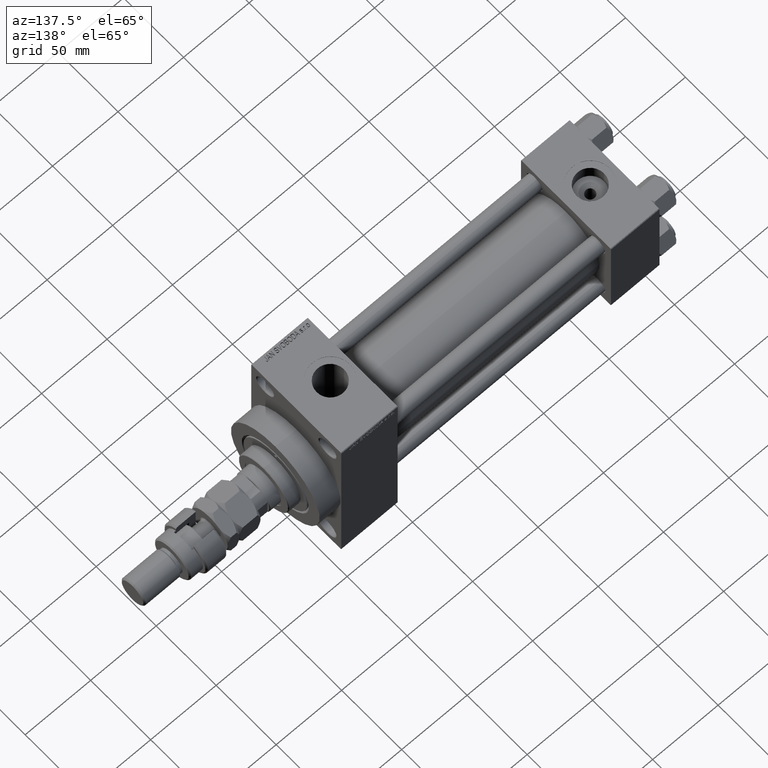
[diagram: clean part render]
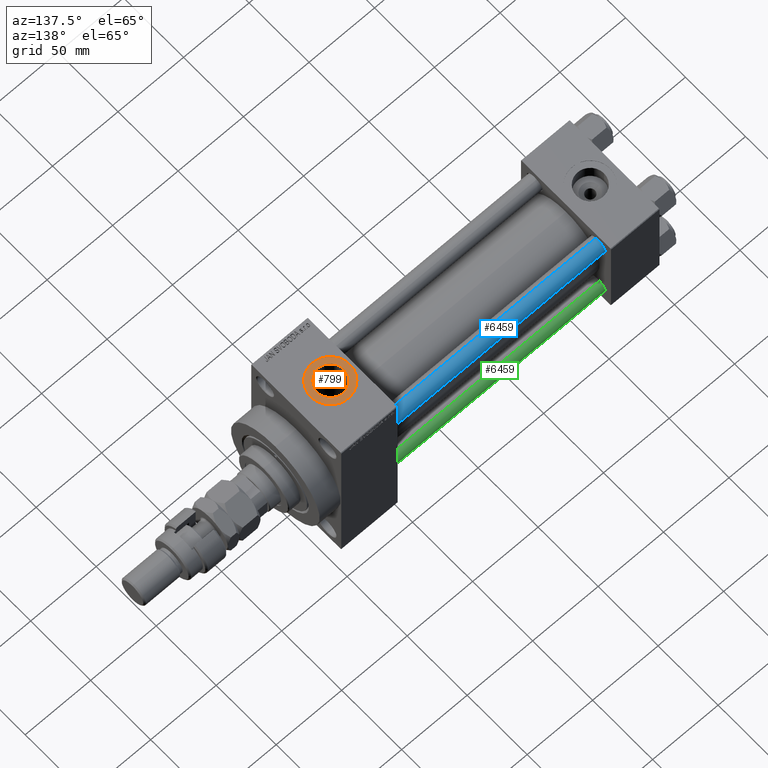
[diagram: same view with three faces highlighted in distinct colors, each labeled with its STEP entity id]
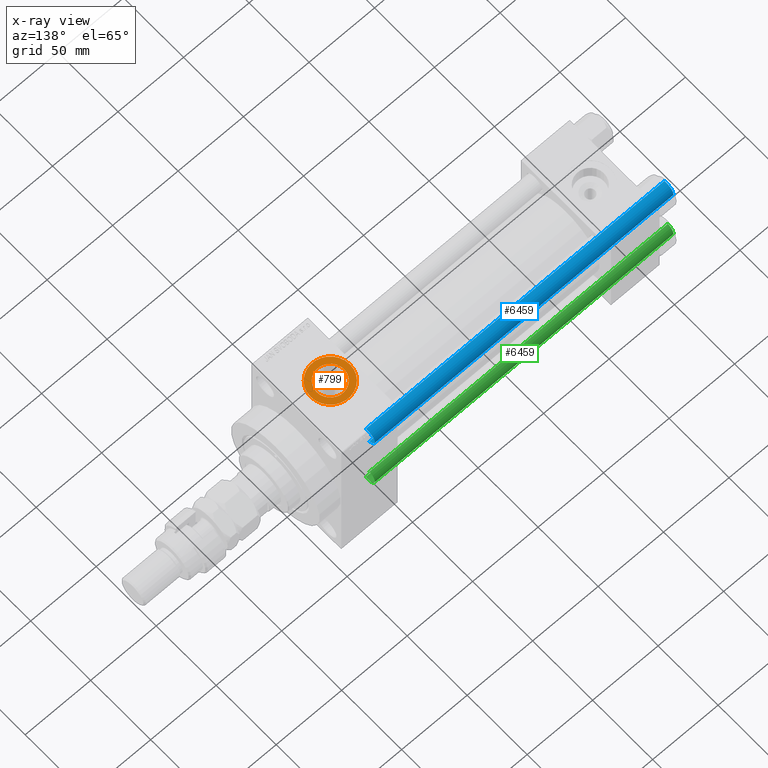
[diagram: x-ray of the same camera — body ghosted, the three highlighted faces saturated]
A machine part, auxiliary view with three faces highlighted in distinct colors.
The next image is the same camera in x-ray (body ghosted, the three faces saturated) — at least one of them is partly hidden behind the body in this view.
Their STEP definitions:

[orange] entity #799 — the highlighted planar face has unit normal (0, 0, 1).
#116 = VERTEX_POINT ( 'NONE', #38392 ) ;
#137 = ORIENTED_EDGE ( 'NONE', *, *, #30864, .T. ) ;
#799 = ADVANCED_FACE ( 'NONE', ( #10334, #41339 ), #49217, .T. ) ;
#821 = DIRECTION ( 'NONE',  ( 1.000000000000000000, 0.000000000000000000, -0.000000000000000000 ) ) ;
#2023 = CIRCLE ( 'NONE', #25571, 10.47999999999998977 ) ;
#2077 = CIRCLE ( 'NONE', #36967, 10.47999999999998977 ) ;
#4040 = DIRECTION ( 'NONE',  ( -0.000000000000000000, -0.000000000000000000, -1.000000000000000000 ) ) ;
#4634 = CIRCLE ( 'NONE', #38731, 15.00000000000001421 ) ;
#5120 = DIRECTION ( 'NONE',  ( -0.000000000000000000, -0.000000000000000000, -1.000000000000000000 ) ) ;
#7585 = DIRECTION ( 'NONE',  ( 0.000000000000000000, 0.000000000000000000, 1.000000000000000000 ) ) ;
#7841 = CARTESIAN_POINT ( 'NONE',  ( 217.0000000000000284, -1.184237892933500047E-14, 63.79999999999996874 ) ) ;
#7916 = AXIS2_PLACEMENT_3D ( 'NONE', #21141, #28758, #821 ) ;
#10019 = ORIENTED_EDGE ( 'NONE', *, *, #24619, .T. ) ;
#10334 = FACE_BOUND ( 'NONE', #41917, .T. ) ;
#13285 = VERTEX_POINT ( 'NONE', #30439 ) ;
#15285 = AXIS2_PLACEMENT_3D ( 'NONE', #49276, #7585, #26146 ) ;
#20866 = CARTESIAN_POINT ( 'NONE',  ( 217.0000000000000284, -1.184237892933500047E-14, 63.79999999999996874 ) ) ;
#21141 = CARTESIAN_POINT ( 'NONE',  ( 217.0000000000000284, -1.184237892933500047E-14, 63.79999999999996874 ) ) ;
#23406 = ORIENTED_EDGE ( 'NONE', *, *, #35618, .T. ) ;
#23702 = VERTEX_POINT ( 'NONE', #32962 ) ;
#24619 = EDGE_CURVE ( 'NONE', #23702, #116, #2077, .T. ) ;
#25571 = AXIS2_PLACEMENT_3D ( 'NONE', #20866, #5120, #44497 ) ;
#26146 = DIRECTION ( 'NONE',  ( 1.000000000000000000, 0.000000000000000000, 0.000000000000000000 ) ) ;
#26551 = DIRECTION ( 'NONE',  ( 1.000000000000000000, 0.000000000000000000, 0.000000000000000000 ) ) ;
#28758 = DIRECTION ( 'NONE',  ( 0.000000000000000000, 0.000000000000000000, 1.000000000000000000 ) ) ;
#30439 = CARTESIAN_POINT ( 'NONE',  ( 202.0000000000000000, -1.000540873061396536E-14, 63.79999999999996874 ) ) ;
#30864 = EDGE_CURVE ( 'NONE', #116, #23702, #2023, .T. ) ;
#31723 = DIRECTION ( 'NONE',  ( 1.000000000000000000, 0.000000000000000000, 0.000000000000000000 ) ) ;
#32962 = CARTESIAN_POINT ( 'NONE',  ( 227.4800000000000182, -1.055894908382857656E-14, 63.79999999999996874 ) ) ;
#35081 = CARTESIAN_POINT ( 'NONE',  ( 232.0000000000000284, -1.184237892933500047E-14, 63.79999999999996874 ) ) ;
#35618 = EDGE_CURVE ( 'NONE', #13285, #44282, #4634, .T. ) ;
#36967 = AXIS2_PLACEMENT_3D ( 'NONE', #7841, #4040, #31723 ) ;
#37206 = CIRCLE ( 'NONE', #15285, 15.00000000000001421 ) ;
#38392 = CARTESIAN_POINT ( 'NONE',  ( 206.5200000000000387, -1.184237892933500047E-14, 63.79999999999996874 ) ) ;
#38685 = EDGE_CURVE ( 'NONE', #44282, #13285, #37206, .T. ) ;
#38731 = AXIS2_PLACEMENT_3D ( 'NONE', #49441, #42307, #26551 ) ;
#41339 = FACE_OUTER_BOUND ( 'NONE', #49247, .T. ) ;
#41917 = EDGE_LOOP ( 'NONE', ( #137, #10019 ) ) ;
#42223 = ORIENTED_EDGE ( 'NONE', *, *, #38685, .T. ) ;
#42307 = DIRECTION ( 'NONE',  ( 0.000000000000000000, 0.000000000000000000, 1.000000000000000000 ) ) ;
#44282 = VERTEX_POINT ( 'NONE', #35081 ) ;
#44497 = DIRECTION ( 'NONE',  ( 1.000000000000000000, 0.000000000000000000, 0.000000000000000000 ) ) ;
#49217 = PLANE ( 'NONE',  #7916 ) ;
#49247 = EDGE_LOOP ( 'NONE', ( #42223, #23406 ) ) ;
#49276 = CARTESIAN_POINT ( 'NONE',  ( 217.0000000000000284, -1.184237892933500047E-14, 63.79999999999996874 ) ) ;
#49441 = CARTESIAN_POINT ( 'NONE',  ( 217.0000000000000284, -1.184237892933500047E-14, 63.79999999999996874 ) ) ;

[blue] entity #6459 — the highlighted cylindrical surface (edge-blend (fillet) strip) has radius 6 mm, axis along (-1, -0, 0).
#4427 = VERTEX_POINT ( 'NONE', #7632 ) ;
#4800 = ORIENTED_EDGE ( 'NONE', *, *, #9100, .T. ) ;
#6247 = DIRECTION ( 'NONE',  ( -0.000000000000000000, -0.000000000000000000, -1.000000000000000000 ) ) ;
#6459 = ADVANCED_FACE ( 'NONE', ( #23091 ), #6757, .T. ) ;
#6500 = CARTESIAN_POINT ( 'NONE',  ( 0.000000000000000000, 0.000000000000000000, 229.0000000000000000 ) ) ;
#6757 = CYLINDRICAL_SURFACE ( 'NONE', #14559, 6.000000000000000888 ) ;
#7632 = CARTESIAN_POINT ( 'NONE',  ( 6.000000000000000888, 7.347880794884119736E-16, 0.5000000000001392220 ) ) ;
#9100 = EDGE_CURVE ( 'NONE', #23937, #4427, #19894, .T. ) ;
#9927 = DIRECTION ( 'NONE',  ( 1.000000000000000000, 0.000000000000000000, 0.000000000000000000 ) ) ;
#11060 = DIRECTION ( 'NONE',  ( -1.000000000000000000, 0.000000000000000000, 0.000000000000000000 ) ) ;
#12075 = AXIS2_PLACEMENT_3D ( 'NONE', #47396, #42389, #38575 ) ;
#12988 = VERTEX_POINT ( 'NONE', #41003 ) ;
#14559 = AXIS2_PLACEMENT_3D ( 'NONE', #6500, #6247, #11060 ) ;
#14978 = EDGE_CURVE ( 'NONE', #27380, #23937, #18793, .T. ) ;
#17038 = DIRECTION ( 'NONE',  ( 0.000000000000000000, 0.000000000000000000, -1.000000000000000000 ) ) ;
#17345 = ORIENTED_EDGE ( 'NONE', *, *, #14978, .T. ) ;
#18133 = CARTESIAN_POINT ( 'NONE',  ( -6.000000000000000888, 0.000000000000000000, 228.5000000000001137 ) ) ;
#18793 = CIRCLE ( 'NONE', #42455, 6.000000000000000888 ) ;
#19352 = CIRCLE ( 'NONE', #12075, 6.000000000000000888 ) ;
#19894 = LINE ( 'NONE', #47580, #24389 ) ;
#21225 = ORIENTED_EDGE ( 'NONE', *, *, #37926, .T. ) ;
#23091 = FACE_OUTER_BOUND ( 'NONE', #40368, .T. ) ;
#23523 = DIRECTION ( 'NONE',  ( -0.000000000000000000, -0.000000000000000000, -1.000000000000000000 ) ) ;
#23937 = VERTEX_POINT ( 'NONE', #24513 ) ;
#24326 = VECTOR ( 'NONE', #23523, 1000.000000000000000 ) ;
#24389 = VECTOR ( 'NONE', #43757, 1000.000000000000000 ) ;
#24513 = CARTESIAN_POINT ( 'NONE',  ( 6.000000000000000888, 7.347880794884119736E-16, 228.5000000000001137 ) ) ;
#27380 = VERTEX_POINT ( 'NONE', #18133 ) ;
#34959 = LINE ( 'NONE', #42827, #24326 ) ;
#37926 = EDGE_CURVE ( 'NONE', #4427, #12988, #19352, .T. ) ;
#38575 = DIRECTION ( 'NONE',  ( 1.000000000000000000, 0.000000000000000000, 0.000000000000000000 ) ) ;
#40368 = EDGE_LOOP ( 'NONE', ( #17345, #4800, #21225, #46695 ) ) ;
#41003 = CARTESIAN_POINT ( 'NONE',  ( -6.000000000000000888, 0.000000000000000000, 0.5000000000001392220 ) ) ;
#41356 = EDGE_CURVE ( 'NONE', #27380, #12988, #34959, .T. ) ;
#42389 = DIRECTION ( 'NONE',  ( -0.000000000000000000, -0.000000000000000000, 1.000000000000000000 ) ) ;
#42455 = AXIS2_PLACEMENT_3D ( 'NONE', #44735, #17038, #9927 ) ;
#42827 = CARTESIAN_POINT ( 'NONE',  ( -6.000000000000000888, 0.000000000000000000, 229.0000000000000000 ) ) ;
#43757 = DIRECTION ( 'NONE',  ( -0.000000000000000000, -0.000000000000000000, -1.000000000000000000 ) ) ;
#44735 = CARTESIAN_POINT ( 'NONE',  ( 0.000000000000000000, 0.000000000000000000, 228.5000000000001137 ) ) ;
#46695 = ORIENTED_EDGE ( 'NONE', *, *, #41356, .F. ) ;
#47396 = CARTESIAN_POINT ( 'NONE',  ( 0.000000000000000000, 0.000000000000000000, 0.5000000000001392220 ) ) ;
#47580 = CARTESIAN_POINT ( 'NONE',  ( 6.000000000000000888, 7.347880794884119736E-16, 229.0000000000000000 ) ) ;

[green] entity #6459 — the highlighted cylindrical surface (edge-blend (fillet) strip) has radius 6 mm, axis along (1, -0, 0).
#4427 = VERTEX_POINT ( 'NONE', #7632 ) ;
#4800 = ORIENTED_EDGE ( 'NONE', *, *, #9100, .T. ) ;
#6247 = DIRECTION ( 'NONE',  ( -0.000000000000000000, -0.000000000000000000, -1.000000000000000000 ) ) ;
#6459 = ADVANCED_FACE ( 'NONE', ( #23091 ), #6757, .T. ) ;
#6500 = CARTESIAN_POINT ( 'NONE',  ( 0.000000000000000000, 0.000000000000000000, 229.0000000000000000 ) ) ;
#6757 = CYLINDRICAL_SURFACE ( 'NONE', #14559, 6.000000000000000888 ) ;
#7632 = CARTESIAN_POINT ( 'NONE',  ( 6.000000000000000888, 7.347880794884119736E-16, 0.5000000000001392220 ) ) ;
#9100 = EDGE_CURVE ( 'NONE', #23937, #4427, #19894, .T. ) ;
#9927 = DIRECTION ( 'NONE',  ( 1.000000000000000000, 0.000000000000000000, 0.000000000000000000 ) ) ;
#11060 = DIRECTION ( 'NONE',  ( -1.000000000000000000, 0.000000000000000000, 0.000000000000000000 ) ) ;
#12075 = AXIS2_PLACEMENT_3D ( 'NONE', #47396, #42389, #38575 ) ;
#12988 = VERTEX_POINT ( 'NONE', #41003 ) ;
#14559 = AXIS2_PLACEMENT_3D ( 'NONE', #6500, #6247, #11060 ) ;
#14978 = EDGE_CURVE ( 'NONE', #27380, #23937, #18793, .T. ) ;
#17038 = DIRECTION ( 'NONE',  ( 0.000000000000000000, 0.000000000000000000, -1.000000000000000000 ) ) ;
#17345 = ORIENTED_EDGE ( 'NONE', *, *, #14978, .T. ) ;
#18133 = CARTESIAN_POINT ( 'NONE',  ( -6.000000000000000888, 0.000000000000000000, 228.5000000000001137 ) ) ;
#18793 = CIRCLE ( 'NONE', #42455, 6.000000000000000888 ) ;
#19352 = CIRCLE ( 'NONE', #12075, 6.000000000000000888 ) ;
#19894 = LINE ( 'NONE', #47580, #24389 ) ;
#21225 = ORIENTED_EDGE ( 'NONE', *, *, #37926, .T. ) ;
#23091 = FACE_OUTER_BOUND ( 'NONE', #40368, .T. ) ;
#23523 = DIRECTION ( 'NONE',  ( -0.000000000000000000, -0.000000000000000000, -1.000000000000000000 ) ) ;
#23937 = VERTEX_POINT ( 'NONE', #24513 ) ;
#24326 = VECTOR ( 'NONE', #23523, 1000.000000000000000 ) ;
#24389 = VECTOR ( 'NONE', #43757, 1000.000000000000000 ) ;
#24513 = CARTESIAN_POINT ( 'NONE',  ( 6.000000000000000888, 7.347880794884119736E-16, 228.5000000000001137 ) ) ;
#27380 = VERTEX_POINT ( 'NONE', #18133 ) ;
#34959 = LINE ( 'NONE', #42827, #24326 ) ;
#37926 = EDGE_CURVE ( 'NONE', #4427, #12988, #19352, .T. ) ;
#38575 = DIRECTION ( 'NONE',  ( 1.000000000000000000, 0.000000000000000000, 0.000000000000000000 ) ) ;
#40368 = EDGE_LOOP ( 'NONE', ( #17345, #4800, #21225, #46695 ) ) ;
#41003 = CARTESIAN_POINT ( 'NONE',  ( -6.000000000000000888, 0.000000000000000000, 0.5000000000001392220 ) ) ;
#41356 = EDGE_CURVE ( 'NONE', #27380, #12988, #34959, .T. ) ;
#42389 = DIRECTION ( 'NONE',  ( -0.000000000000000000, -0.000000000000000000, 1.000000000000000000 ) ) ;
#42455 = AXIS2_PLACEMENT_3D ( 'NONE', #44735, #17038, #9927 ) ;
#42827 = CARTESIAN_POINT ( 'NONE',  ( -6.000000000000000888, 0.000000000000000000, 229.0000000000000000 ) ) ;
#43757 = DIRECTION ( 'NONE',  ( -0.000000000000000000, -0.000000000000000000, -1.000000000000000000 ) ) ;
#44735 = CARTESIAN_POINT ( 'NONE',  ( 0.000000000000000000, 0.000000000000000000, 228.5000000000001137 ) ) ;
#46695 = ORIENTED_EDGE ( 'NONE', *, *, #41356, .F. ) ;
#47396 = CARTESIAN_POINT ( 'NONE',  ( 0.000000000000000000, 0.000000000000000000, 0.5000000000001392220 ) ) ;
#47580 = CARTESIAN_POINT ( 'NONE',  ( 6.000000000000000888, 7.347880794884119736E-16, 229.0000000000000000 ) ) ;